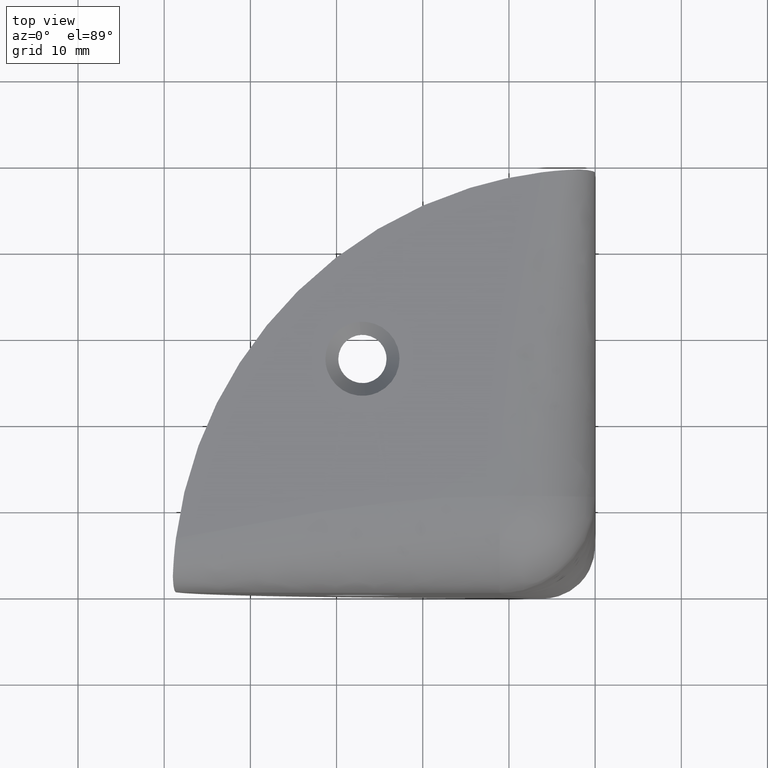
[diagram: clean part render]
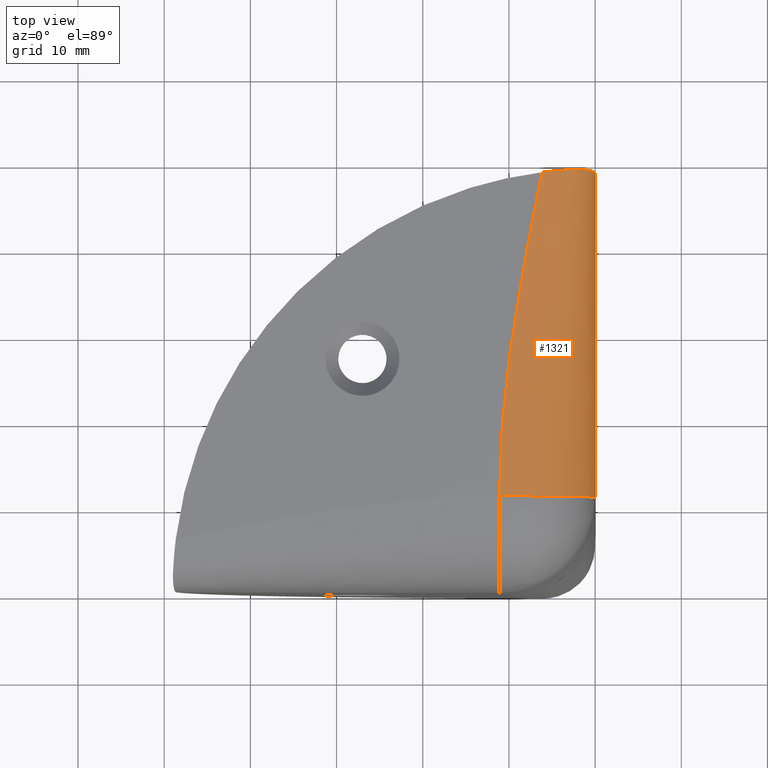
[diagram: same view with one face highlighted and labeled with its STEP entity id]
A machine part, top view. The second image highlights one B-rep face of the part: STEP entity #1321.
In plain terms, the highlighted face is a freeform B-spline surface patch.
Its self-contained STEP definition (entity closure, byte-faithful):
#1114=CARTESIAN_POINT('',(0.0,11.100000000000000,37.900000000000013));
#1115=VERTEX_POINT('',#1114);
#1195=CARTESIAN_POINT('',(-11.100000000000000,11.100000000000000,49.0));
#1196=VERTEX_POINT('',#1195);
#1197=CARTESIAN_POINT('',(0.0,11.100000000000000,37.900000000000013));
#1198=CARTESIAN_POINT('',(0.0,11.099999999999996,49.0));
#1199=CARTESIAN_POINT('',(-11.100000000000000,11.100000000000000,49.0));
#1207=(BOUNDED_CURVE()B_SPLINE_CURVE(2,(#1197,#1198,#1199),.UNSPECIFIED.,.F.,.U.)CURVE()GEOMETRIC_REPRESENTATION_ITEM()QUASI_UNIFORM_CURVE()RATIONAL_B_SPLINE_CURVE((1.0,0.707106781186548,1.0))REPRESENTATION_ITEM(''));
#1208=EDGE_CURVE('',#1115,#1196,#1207,.T.);
#1227=CARTESIAN_POINT('',(0.0,49.220990960595103,42.943731720434393));
#1228=CARTESIAN_POINT('',(0.0,49.220990960595081,49.0));
#1229=CARTESIAN_POINT('',(-6.056268279565614,49.220990960595103,49.0));
#1230=CARTESIAN_POINT('',(0.0,49.147327307063392,42.929154480289590));
#1231=CARTESIAN_POINT('',(0.0,49.147327307063378,49.0));
#1232=CARTESIAN_POINT('',(-6.070845519710409,49.147327307063392,49.0));
#1233=CARTESIAN_POINT('',(0.0,49.073663653531703,42.914577240144787));
#1234=CARTESIAN_POINT('',(0.0,49.073663653531682,49.0));
#1235=CARTESIAN_POINT('',(-6.085422759855205,49.073663653531703,49.0));
#1236=CARTESIAN_POINT('',(0.0,49.0,42.899999999999999));
#1237=CARTESIAN_POINT('',(0.0,49.0,49.0));
#1238=CARTESIAN_POINT('',(-6.100000000000001,49.0,49.0));
#1239=CARTESIAN_POINT('',(0.0,36.366666666666703,40.399999999999999));
#1240=CARTESIAN_POINT('',(0.0,36.366666666666674,49.0));
#1241=CARTESIAN_POINT('',(-8.600000000000000,36.366666666666703,49.0));
#1242=CARTESIAN_POINT('',(0.0,23.733333333333348,37.900000000000013));
#1243=CARTESIAN_POINT('',(0.0,23.733333333333348,49.0));
#1244=CARTESIAN_POINT('',(-11.100000000000000,23.733333333333348,49.0));
#1245=CARTESIAN_POINT('',(0.0,11.100000000000000,37.900000000000013));
#1246=CARTESIAN_POINT('',(0.0,11.099999999999996,49.0));
#1247=CARTESIAN_POINT('',(-11.100000000000000,11.100000000000000,49.0));
#1255=(BOUNDED_SURFACE()B_SPLINE_SURFACE(2,3,((#1227,#1230,#1233,#1236,#1239,#1242,#1245),(#1228,#1231,#1234,#1237,#1240,#1243,#1246),(#1229,#1232,#1235,#1238,#1241,#1244,#1247)),.UNSPECIFIED.,.F.,.F.,.U.)B_SPLINE_SURFACE_WITH_KNOTS((3,3),(4,3,4),(0.0,18.391082169365401),(0.0,0.225276425834801,38.860234689048227),.UNSPECIFIED.)GEOMETRIC_REPRESENTATION_ITEM()RATIONAL_B_SPLINE_SURFACE(((1.0,1.0,1.0,1.0,1.0,1.0,1.0),(0.707106781186548,0.707106781186548,0.707106781186548,0.707106781186548,0.707106781186548,0.707106781186548,0.707106781186548),(1.0,1.0,1.0,1.0,1.0,1.0,1.0)))REPRESENTATION_ITEM('')SURFACE());
#1256=CARTESIAN_POINT('',(-6.171573241230100,48.638305573724800,49.0));
#1257=VERTEX_POINT('',#1256);
#1258=CARTESIAN_POINT('',(-1.787017889713220,48.993629185482199,47.212982110286902));
#1259=VERTEX_POINT('',#1258);
#1260=CARTESIAN_POINT('',(-6.171573241230100,48.638305573724800,49.0));
#1261=CARTESIAN_POINT('',(-5.765225800642783,48.689681109479089,49.000000000000007));
#1262=CARTESIAN_POINT('',(-5.364675682616473,48.735149691336673,48.962174038318580));
#1263=CARTESIAN_POINT('',(-4.772576887062995,48.795205471031899,48.848956690878119));
#1264=CARTESIAN_POINT('',(-4.576674703107434,48.813864547088102,48.801746374879542));
#1265=CARTESIAN_POINT('',(-4.285114519458367,48.839892655605141,48.716200870942053));
#1266=CARTESIAN_POINT('',(-4.188310656096741,48.848241892742578,48.685226644064279));
#1267=CARTESIAN_POINT('',(-3.995493889272200,48.864299478744599,48.618219132914270));
#1268=CARTESIAN_POINT('',(-3.900057184479021,48.871959171889003,48.582378694877349));
#1269=CARTESIAN_POINT('',(-3.429592338959237,48.908366996369693,48.392358053706552));
#1270=CARTESIAN_POINT('',(-3.072565172450456,48.931633429253260,48.205325283186461));
#1271=CARTESIAN_POINT('',(-2.566129723612319,48.959681529853128,47.872314356688150));
#1272=CARTESIAN_POINT('',(-2.402199889963693,48.967884227243410,47.752511321937703));
#1273=CARTESIAN_POINT('',(-2.163948242052753,48.978680101862288,47.559063151273570));
#1274=CARTESIAN_POINT('',(-2.086060887909261,48.982015349568421,47.492482850971363));
#1275=CARTESIAN_POINT('',(-1.933936801425760,48.988182024946333,47.355623011826012));
#1276=CARTESIAN_POINT('',(-1.859607161586608,48.991017677366912,47.285268654061518));
#1277=CARTESIAN_POINT('',(-1.787017889713215,48.993629185482199,47.212982110286902));
#1278=B_SPLINE_CURVE_WITH_KNOTS('',3,(#1260,#1261,#1262,#1263,#1264,#1265,#1266,#1267,#1268,#1269,#1270,#1271,#1272,#1273,#1274,#1275,#1276,#1277),.UNSPECIFIED.,.F.,.U.,(4,2,2,2,2,2,2,2,4),(0.0,0.249999999999997,0.374999999999996,0.437499999999996,0.499999999999996,0.749999999999996,0.874999999999998,0.937499999999999,1.0),.UNSPECIFIED.);
#1279=EDGE_CURVE('',#1257,#1259,#1278,.T.);
#1280=ORIENTED_EDGE('',*,*,#1279,.F.);
#1281=CARTESIAN_POINT('',(-11.100000000000000,11.100000000000000,49.0));
#1282=CARTESIAN_POINT('',(-11.100000000000000,23.612768524574950,49.0));
#1283=CARTESIAN_POINT('',(-8.647489252117540,36.125537049149891,49.0));
#1284=CARTESIAN_POINT('',(-6.171573241230091,48.638305573724793,49.0));
#1285=B_SPLINE_CURVE_WITH_KNOTS('',3,(#1281,#1282,#1283,#1284),.UNSPECIFIED.,.F.,.U.,(4,4),(0.453792309865482,1.0),.UNSPECIFIED.);
#1286=EDGE_CURVE('',#1196,#1257,#1285,.T.);
#1287=ORIENTED_EDGE('',*,*,#1286,.F.);
#1288=ORIENTED_EDGE('',*,*,#1208,.F.);
#1289=CARTESIAN_POINT('',(0.0,48.638305573724800,42.828426758769943));
#1290=VERTEX_POINT('',#1289);
#1291=CARTESIAN_POINT('',(0.0,48.638305573724793,42.828426758769908));
#1292=CARTESIAN_POINT('',(0.0,36.125537049149891,40.352510747882462));
#1293=CARTESIAN_POINT('',(0.0,23.612768524574950,37.900000000000013));
#1294=CARTESIAN_POINT('',(0.0,11.100000000000000,37.900000000000013));
#1295=B_SPLINE_CURVE_WITH_KNOTS('',3,(#1291,#1292,#1293,#1294),.UNSPECIFIED.,.F.,.U.,(4,4),(0.453792309865482,1.0),.UNSPECIFIED.);
#1296=EDGE_CURVE('',#1290,#1115,#1295,.T.);
#1297=ORIENTED_EDGE('',*,*,#1296,.F.);
#1298=CARTESIAN_POINT('',(-1.787017889713220,48.993629185482199,47.212982110286902));
#1299=CARTESIAN_POINT('',(-1.498166744652732,48.983193811620772,46.922921288384707));
#1300=CARTESIAN_POINT('',(-1.243456440835818,48.969326293050493,46.608903361447140));
#1301=CARTESIAN_POINT('',(-0.910254561642432,48.941419643462297,46.103704322942512));
#1302=CARTESIAN_POINT('',(-0.807390679276624,48.930929862106687,45.929567406641503));
#1303=CARTESIAN_POINT('',(-0.665622032419021,48.913123437820467,45.659614546134911));
#1304=CARTESIAN_POINT('',(-0.620341377787739,48.906823354246477,45.567911068069073));
#1305=CARTESIAN_POINT('',(-0.534693213898582,48.893581953755529,45.382965288554352));
#1306=CARTESIAN_POINT('',(-0.494341028246447,48.886647773631509,45.289798557933352));
#1307=CARTESIAN_POINT('',(-0.304643336238732,48.850355499663728,44.820587091258091));
#1308=CARTESIAN_POINT('',(-0.191177692169317,48.816142147734439,44.434498624151608));
#1309=CARTESIAN_POINT('',(-0.095764144555557,48.765966512150307,43.938995724072022));
#1310=CARTESIAN_POINT('',(-0.079021341737152,48.755560307242668,43.839245040477422));
#1311=CARTESIAN_POINT('',(-0.050254967596804,48.733979300421517,43.638434331225831));
#1312=CARTESIAN_POINT('',(-0.038232320396408,48.722793773603492,43.537290271417760));
#1313=CARTESIAN_POINT('',(-0.009501825970828,48.688296454444412,43.234041921480440));
#1314=CARTESIAN_POINT('',(-3.764591E-019,48.663973618821089,43.031444484553667));
#1315=CARTESIAN_POINT('',(-8.994743E-032,48.638305573724800,42.828426758769943));
#1316=B_SPLINE_CURVE_WITH_KNOTS('',3,(#1298,#1299,#1300,#1301,#1302,#1303,#1304,#1305,#1306,#1307,#1308,#1309,#1310,#1311,#1312,#1313,#1314,#1315),.UNSPECIFIED.,.F.,.U.,(4,2,2,2,2,2,2,2,4),(0.0,0.250000000000006,0.375000000000009,0.437500000000011,0.500000000000012,0.750000000000007,0.812500000000005,0.875000000000003,1.0),.UNSPECIFIED.);
#1317=EDGE_CURVE('',#1259,#1290,#1316,.T.);
#1318=ORIENTED_EDGE('',*,*,#1317,.F.);
#1319=EDGE_LOOP('',(#1280,#1287,#1288,#1297,#1318));
#1320=FACE_OUTER_BOUND('',#1319,.T.);
#1321=ADVANCED_FACE('',(#1320),#1255,.T.);